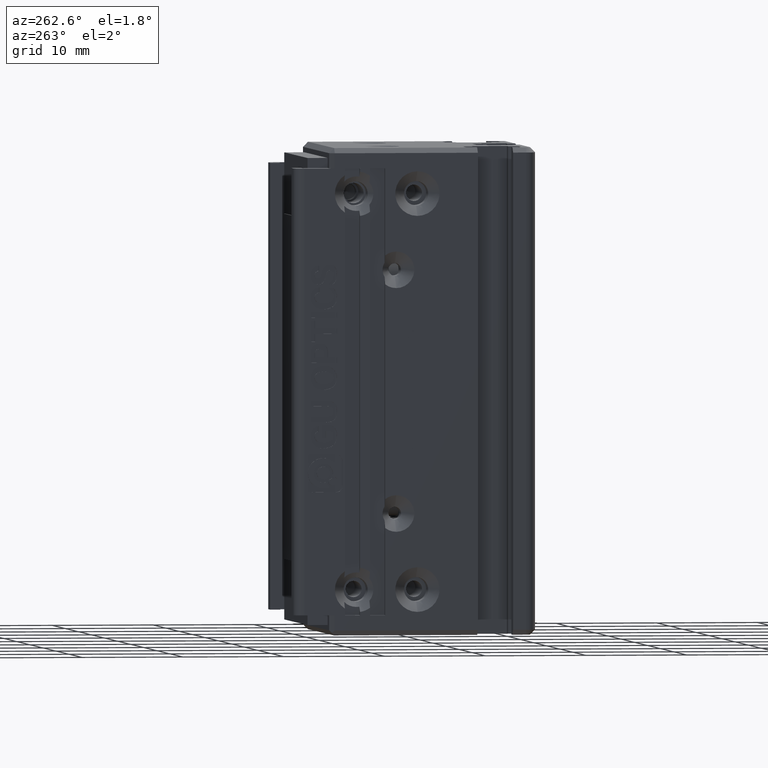
[diagram: clean part render]
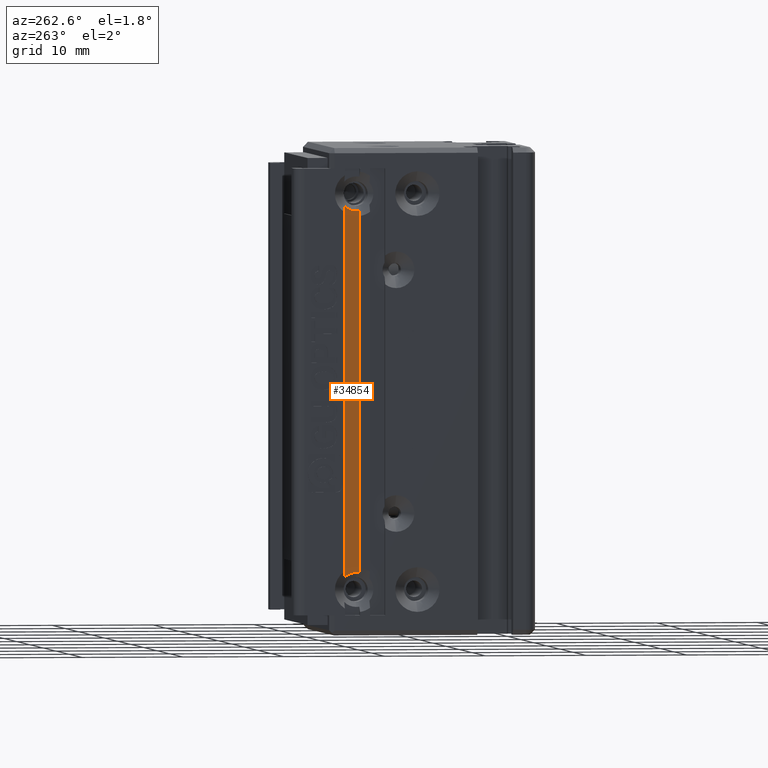
[diagram: same view with one face highlighted and labeled with its STEP entity id]
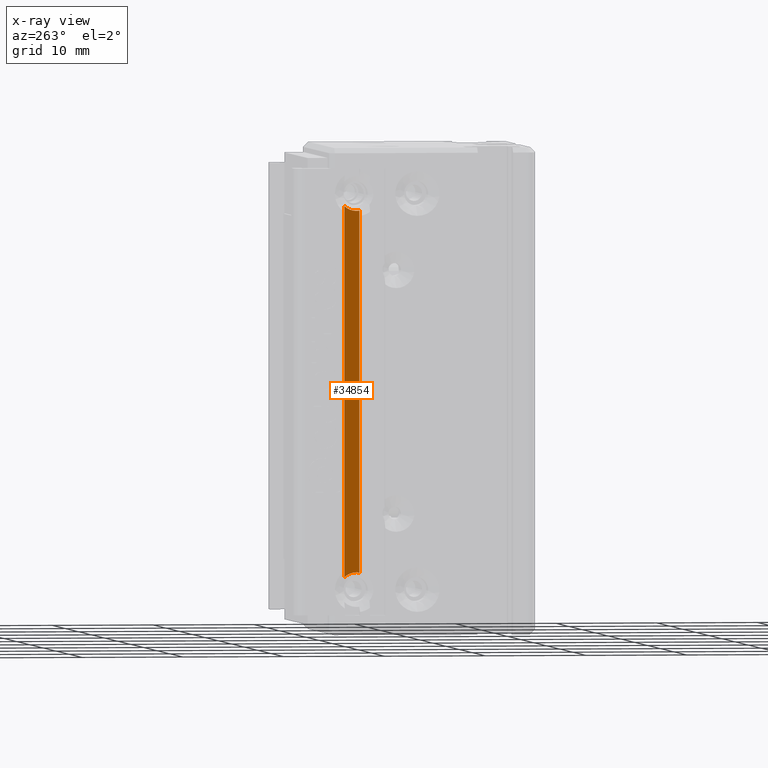
[diagram: x-ray of the same camera — body ghosted, the highlighted face saturated]
A machine part, auxiliary view. The second image highlights one B-rep face of the part: STEP entity #34854.
The next image is the same camera in x-ray: the body ghosted, the highlighted face saturated — about 0% of this face is hidden behind the body in this view.
In plain terms, the highlighted planar face has unit normal (1, 0, -0).
Its self-contained STEP definition (entity closure, byte-faithful):
#638 = LINE ( 'NONE', #28422, #12770 ) ;
#866 = ORIENTED_EDGE ( 'NONE', *, *, #8758, .T. ) ;
#1228 = DIRECTION ( 'NONE',  ( 0.0000000000000000000, 6.122553444546029700E-015, 1.000000000000000000 ) ) ;
#2004 = EDGE_CURVE ( 'NONE', #24860, #18967, #28017, .T. ) ;
#2399 = VERTEX_POINT ( 'NONE', #38288 ) ;
#2785 = CARTESIAN_POINT ( 'NONE',  ( 30.92537974684452000, 28.79073232304836700, -134.5000000000000000 ) ) ;
#2946 = CARTESIAN_POINT ( 'NONE',  ( 30.92537974683997200, 29.99073232304837000, -96.70415945791623400 ) ) ;
#3339 = EDGE_CURVE ( 'NONE', #8754, #2399, #19323, .T. ) ;
#4092 = DIRECTION ( 'NONE',  ( 0.0000000000000000000, 1.020425574083357900E-014, 1.000000000000000000 ) ) ;
#4110 = ORIENTED_EDGE ( 'NONE', *, *, #29086, .T. ) ;
#5358 = DIRECTION ( 'NONE',  ( -0.0000000000000000000, 0.0000000000000000000, -1.000000000000000000 ) ) ;
#5432 = AXIS2_PLACEMENT_3D ( 'NONE', #2785, #8909, #5773 ) ;
#5773 = DIRECTION ( 'NONE',  ( 0.0000000000000000000, 0.0000000000000000000, 1.000000000000000000 ) ) ;
#7481 = CARTESIAN_POINT ( 'NONE',  ( 30.92537974684452000, 28.79073232304836700, -134.5000000000000000 ) ) ;
#8754 = VERTEX_POINT ( 'NONE', #18273 ) ;
#8758 = EDGE_CURVE ( 'NONE', #2399, #12294, #34614, .T. ) ;
#8909 = DIRECTION ( 'NONE',  ( 1.000000000000000000, -0.0000000000000000000, -0.0000000000000000000 ) ) ;
#10246 = CARTESIAN_POINT ( 'NONE',  ( 30.92537974684452000, 28.79073232304837000, -95.50000000000001400 ) ) ;
#10443 = DIRECTION ( 'NONE',  ( -0.0000000000000000000, 0.0000000000000000000, -1.000000000000000000 ) ) ;
#12241 = DIRECTION ( 'NONE',  ( 0.0000000000000000000, 0.0000000000000000000, 1.000000000000000000 ) ) ;
#12294 = VERTEX_POINT ( 'NONE', #2946 ) ;
#12429 = FACE_OUTER_BOUND ( 'NONE', #16024, .T. ) ;
#12770 = VECTOR ( 'NONE', #10443, 1000.000000000000000 ) ;
#14155 = AXIS2_PLACEMENT_3D ( 'NONE', #28255, #22205, #28131 ) ;
#15237 = PLANE ( 'NONE',  #14155 ) ;
#15911 = AXIS2_PLACEMENT_3D ( 'NONE', #7481, #22020, #4092 ) ;
#16024 = EDGE_LOOP ( 'NONE', ( #34098, #29020, #37410, #20755, #866, #4110 ) ) ;
#16438 = VERTEX_POINT ( 'NONE', #30892 ) ;
#18089 = CARTESIAN_POINT ( 'NONE',  ( 30.92537974684452000, 28.79073232304836700, -132.7999999999656200 ) ) ;
#18273 = CARTESIAN_POINT ( 'NONE',  ( 30.92537974684715600, 28.49073232304836600, -97.17332005308748000 ) ) ;
#18967 = VERTEX_POINT ( 'NONE', #22366 ) ;
#19237 = EDGE_CURVE ( 'NONE', #8754, #18967, #33367, .T. ) ;
#19323 = CIRCLE ( 'NONE', #38814, 1.700000000021656400 ) ;
#20755 = ORIENTED_EDGE ( 'NONE', *, *, #3339, .T. ) ;
#21575 = CARTESIAN_POINT ( 'NONE',  ( 30.92537974684452000, 28.79073232304837000, -95.50000000000001400 ) ) ;
#22020 = DIRECTION ( 'NONE',  ( 1.000000000000000000, -0.0000000000000000000, -0.0000000000000000000 ) ) ;
#22205 = DIRECTION ( 'NONE',  ( 1.000000000000000000, 0.0000000000000000000, -0.0000000000000000000 ) ) ;
#22366 = CARTESIAN_POINT ( 'NONE',  ( 30.92537974684977100, 28.49073232304836600, -132.8266799469022600 ) ) ;
#23041 = EDGE_CURVE ( 'NONE', #16438, #24860, #34434, .T. ) ;
#24860 = VERTEX_POINT ( 'NONE', #18089 ) ;
#28017 = CIRCLE ( 'NONE', #5432, 1.700000000034396200 ) ;
#28131 = DIRECTION ( 'NONE',  ( -0.0000000000000000000, 0.0000000000000000000, -1.000000000000000000 ) ) ;
#28255 = CARTESIAN_POINT ( 'NONE',  ( 30.92537974683542100, 7.083797468354437600, -91.00000000000000000 ) ) ;
#28422 = CARTESIAN_POINT ( 'NONE',  ( 30.92537974683542100, 29.99073232304837000, -91.00000000000000000 ) ) ;
#29020 = ORIENTED_EDGE ( 'NONE', *, *, #2004, .T. ) ;
#29086 = EDGE_CURVE ( 'NONE', #12294, #16438, #638, .T. ) ;
#30892 = CARTESIAN_POINT ( 'NONE',  ( 30.92537974685360800, 29.99073232304837000, -133.2958405420850700 ) ) ;
#33367 = LINE ( 'NONE', #35538, #33809 ) ;
#33809 = VECTOR ( 'NONE', #5358, 1000.000000000000000 ) ;
#34098 = ORIENTED_EDGE ( 'NONE', *, *, #23041, .T. ) ;
#34434 = CIRCLE ( 'NONE', #15911, 1.700000000034396200 ) ;
#34614 = CIRCLE ( 'NONE', #36700, 1.700000000021656400 ) ;
#34854 = ADVANCED_FACE ( 'NONE', ( #12429 ), #15237, .F. ) ;
#35538 = CARTESIAN_POINT ( 'NONE',  ( 30.92537974683542100, 28.49073232304836600, -91.00000000000000000 ) ) ;
#36103 = DIRECTION ( 'NONE',  ( 1.000000000000000000, -0.0000000000000000000, -0.0000000000000000000 ) ) ;
#36700 = AXIS2_PLACEMENT_3D ( 'NONE', #21575, #36103, #12241 ) ;
#37056 = DIRECTION ( 'NONE',  ( 1.000000000000000000, -0.0000000000000000000, -0.0000000000000000000 ) ) ;
#37410 = ORIENTED_EDGE ( 'NONE', *, *, #19237, .F. ) ;
#38288 = CARTESIAN_POINT ( 'NONE',  ( 30.92537974684452000, 28.79073232304837000, -97.20000000002167400 ) ) ;
#38814 = AXIS2_PLACEMENT_3D ( 'NONE', #10246, #37056, #1228 ) ;